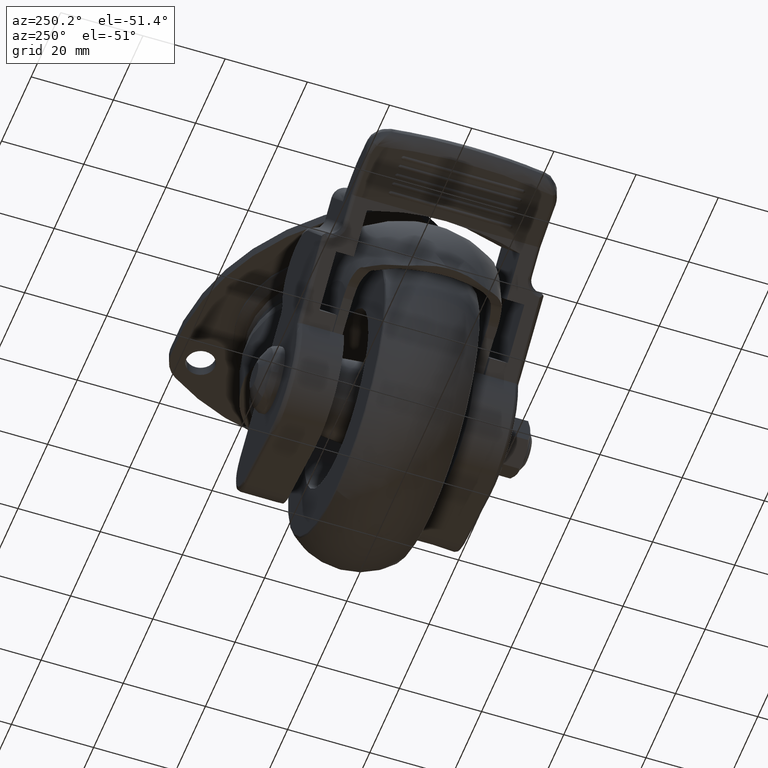
[diagram: clean part render]
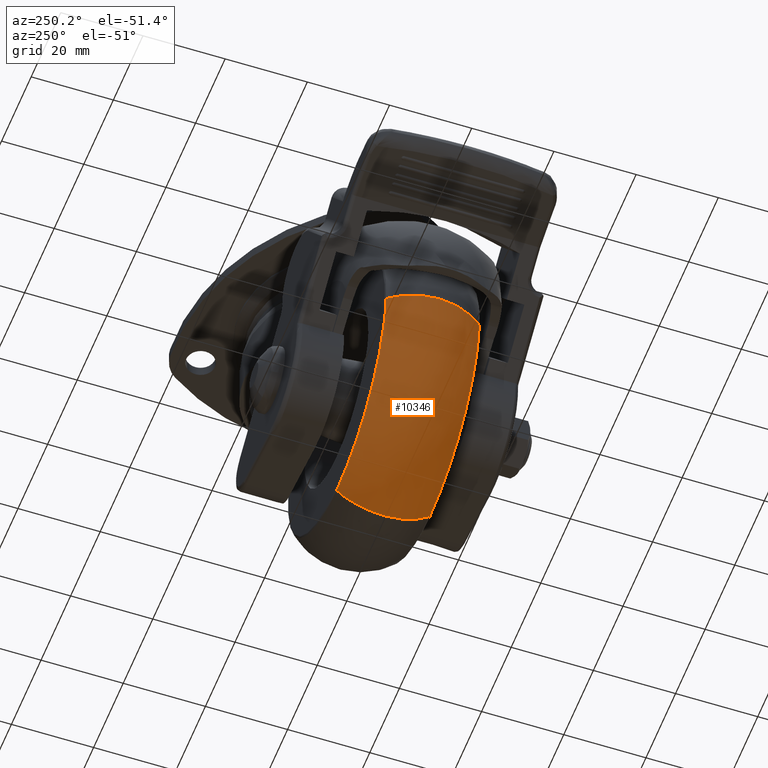
[diagram: same view with one face highlighted and labeled with its STEP entity id]
A machine part, auxiliary view. The second image highlights one B-rep face of the part: STEP entity #10346.
In plain terms, the highlighted face is a freeform B-spline surface patch.
Its self-contained STEP definition (entity closure, byte-faithful):
#9954=CARTESIAN_POINT('',(0.416828760800107,11.333333355749589,-90.668432805636684));
#9955=VERTEX_POINT('',#9954);
#9971=CARTESIAN_POINT('',(0.0,11.333333356382060,-90.671051851883405));
#9972=VERTEX_POINT('',#9971);
#9973=CARTESIAN_POINT('',(0.416828760800107,11.333333355749589,-90.668432805636684));
#9974=CARTESIAN_POINT('',(0.208422608607754,11.333333356382063,-90.671051851883405));
#9975=CARTESIAN_POINT('',(0.0,11.333333356382060,-90.671051851883405));
#9983=(BOUNDED_CURVE()B_SPLINE_CURVE(2,(#9973,#9974,#9975),.UNSPECIFIED.,.F.,.U.)B_SPLINE_CURVE_WITH_KNOTS((3,3),(0.497784295919083,0.500000000000000),.UNSPECIFIED.)CURVE()GEOMETRIC_REPRESENTATION_ITEM()RATIONAL_B_SPLINE_CURVE((0.994854295637923,0.997404141199208,1.0))REPRESENTATION_ITEM(''));
#9984=EDGE_CURVE('',#9955,#9972,#9983,.T.);
#9986=CARTESIAN_POINT('',(-33.090302693076737,11.333333355856499,-59.813125304016403));
#9987=VERTEX_POINT('',#9986);
#9988=CARTESIAN_POINT('',(0.0,11.333333356382060,-90.671051851883405));
#9989=CARTESIAN_POINT('',(-30.933228114146491,11.333333356382060,-90.671051851883419));
#9990=CARTESIAN_POINT('',(-33.090302693076737,11.333333355856494,-59.813125304016395));
#9998=(BOUNDED_CURVE()B_SPLINE_CURVE(2,(#9988,#9989,#9990),.UNSPECIFIED.,.F.,.U.)B_SPLINE_CURVE_WITH_KNOTS((3,3),(0.500000000000000,0.737833686533324),.UNSPECIFIED.)CURVE()GEOMETRIC_REPRESENTATION_ITEM()RATIONAL_B_SPLINE_CURVE((1.0,0.721360504035940,0.972879876383238))REPRESENTATION_ITEM(''));
#9999=EDGE_CURVE('',#9972,#9987,#9998,.T.);
#10197=CARTESIAN_POINT('',(-33.090302804285010,-11.333333300399801,-59.813125311760203));
#10198=VERTEX_POINT('',#10197);
#10199=CARTESIAN_POINT('',(-33.090302804285017,-11.333333300399797,-59.813125311760203));
#10200=CARTESIAN_POINT('',(-43.202467799018386,0.000000077401135,-60.520000221249369));
#10201=CARTESIAN_POINT('',(-33.090302693076730,11.333333355856498,-59.813125304016395));
#10209=(BOUNDED_CURVE()B_SPLINE_CURVE(2,(#10199,#10200,#10201),.UNSPECIFIED.,.F.,.U.)B_SPLINE_CURVE_WITH_KNOTS((3,3),(-1.710040864885921,-0.289959127885270),.UNSPECIFIED.)CURVE()GEOMETRIC_REPRESENTATION_ITEM()RATIONAL_B_SPLINE_CURVE((0.868722746552523,0.647507706763222,0.868722748804677))REPRESENTATION_ITEM(''));
#10210=EDGE_CURVE('',#10198,#9987,#10209,.T.);
#10261=CARTESIAN_POINT('',(0.416828762165187,-11.333333300299740,-90.668432917099764));
#10262=VERTEX_POINT('',#10261);
#10276=CARTESIAN_POINT('',(0.416828762165187,-11.333333300299737,-90.668432917099750));
#10277=CARTESIAN_POINT('',(0.544208714928569,0.000000077388814,-100.804473927150990));
#10278=CARTESIAN_POINT('',(0.416828760800107,11.333333355749588,-90.668432805636684));
#10286=(BOUNDED_CURVE()B_SPLINE_CURVE(2,(#10276,#10277,#10278),.UNSPECIFIED.,.F.,.U.)B_SPLINE_CURVE_WITH_KNOTS((3,3),(-1.710040864869099,-0.289959127903242),.UNSPECIFIED.)CURVE()GEOMETRIC_REPRESENTATION_ITEM()RATIONAL_B_SPLINE_CURVE((0.888713648390262,0.662408045294405,0.888713650693876))REPRESENTATION_ITEM(''));
#10287=EDGE_CURVE('',#10262,#9955,#10286,.T.);
#10295=CARTESIAN_POINT('',(0.407129190061715,-12.141247478081578,-89.896606140943092));
#10296=CARTESIAN_POINT('',(-30.186717260248503,-12.141247478081581,-90.281079992061834));
#10297=CARTESIAN_POINT('',(-32.320294109687318,-12.141247478081578,-59.759299070973874));
#10298=CARTESIAN_POINT('',(0.562800502157988,-0.000000330962834,-102.283883468472240));
#10299=CARTESIAN_POINT('',(-41.729013903409282,-0.000000330962833,-102.815366058663020));
#10300=CARTESIAN_POINT('',(-44.678392507470555,-0.000000330962834,-60.623172404996126));
#10301=CARTESIAN_POINT('',(0.407129194219764,12.141247153783556,-89.896606471812660));
#10302=CARTESIAN_POINT('',(-30.186717568548289,12.141247153783549,-90.281080326858131));
#10303=CARTESIAN_POINT('',(-32.320294439777527,12.141247153783555,-59.759299094048316));
#10311=(BOUNDED_SURFACE()B_SPLINE_SURFACE(2,2,((#10295,#10298,#10301),(#10296,#10299,#10302),(#10297,#10300,#10303)),.UNSPECIFIED.,.F.,.F.,.U.)B_SPLINE_SURFACE_WITH_KNOTS((3,3),(3,3),(0.0,59.630383451579640),(0.0,28.568466749480461),.UNSPECIFIED.)GEOMETRIC_REPRESENTATION_ITEM()RATIONAL_B_SPLINE_SURFACE(((0.912450913483905,0.638670786576356,0.912450903036333),(0.655890255826712,0.459090937831586,0.655890248316762),(0.891926060871329,0.624304398676774,0.891926050658767)))REPRESENTATION_ITEM('')SURFACE());
#10312=ORIENTED_EDGE('',*,*,#9999,.F.);
#10313=ORIENTED_EDGE('',*,*,#9984,.F.);
#10314=ORIENTED_EDGE('',*,*,#10287,.F.);
#10315=CARTESIAN_POINT('',(0.0,-11.333333331469920,-90.671051997916635));
#10316=VERTEX_POINT('',#10315);
#10317=CARTESIAN_POINT('',(0.416828762165187,-11.333333300299733,-90.668432917099764));
#10318=CARTESIAN_POINT('',(0.208422609489641,-11.333333331469921,-90.671051997916621));
#10319=CARTESIAN_POINT('',(0.0,-11.333333331469920,-90.671051997916635));
#10327=(BOUNDED_CURVE()B_SPLINE_CURVE(2,(#10317,#10318,#10319),.UNSPECIFIED.,.F.,.U.)B_SPLINE_CURVE_WITH_KNOTS((3,3),(0.497784295919461,0.500000000000000),.UNSPECIFIED.)CURVE()GEOMETRIC_REPRESENTATION_ITEM()RATIONAL_B_SPLINE_CURVE((0.994854295638794,0.997404141199651,1.0))REPRESENTATION_ITEM(''));
#10328=EDGE_CURVE('',#10262,#10316,#10327,.T.);
#10329=ORIENTED_EDGE('',*,*,#10328,.T.);
#10330=CARTESIAN_POINT('',(0.0,-11.333333331469920,-90.671051997916635));
#10331=CARTESIAN_POINT('',(-30.933228250383916,-11.333333331469920,-90.671051997916635));
#10332=CARTESIAN_POINT('',(-33.090302804285010,-11.333333300399801,-59.813125311760203));
#10340=(BOUNDED_CURVE()B_SPLINE_CURVE(2,(#10330,#10331,#10332),.UNSPECIFIED.,.F.,.U.)B_SPLINE_CURVE_WITH_KNOTS((3,3),(0.500000000000000,0.737833686533635),.UNSPECIFIED.)CURVE()GEOMETRIC_REPRESENTATION_ITEM()RATIONAL_B_SPLINE_CURVE((1.0,0.721360504035576,0.972879876383895))REPRESENTATION_ITEM(''));
#10341=EDGE_CURVE('',#10316,#10198,#10340,.T.);
#10342=ORIENTED_EDGE('',*,*,#10341,.T.);
#10343=ORIENTED_EDGE('',*,*,#10210,.T.);
#10344=EDGE_LOOP('',(#10312,#10313,#10314,#10329,#10342,#10343));
#10345=FACE_OUTER_BOUND('',#10344,.T.);
#10346=ADVANCED_FACE('',(#10345),#10311,.T.);